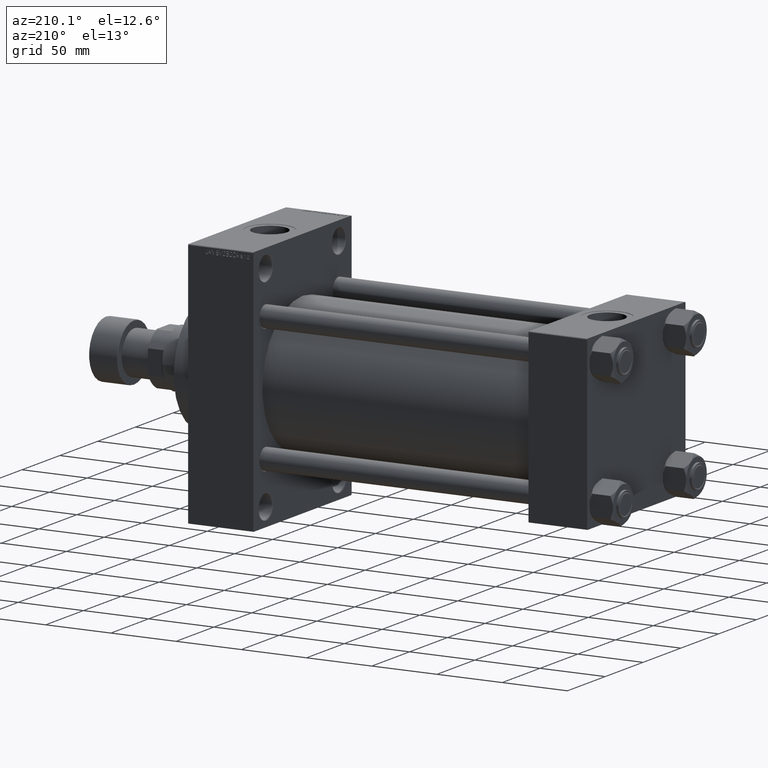
[diagram: clean part render]
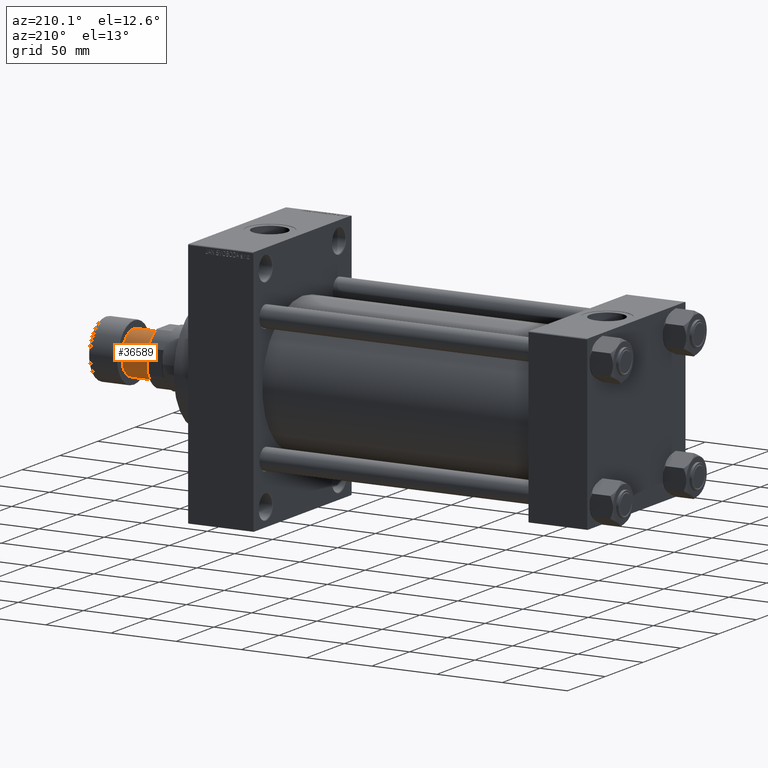
[diagram: same view with one face highlighted and labeled with its STEP entity id]
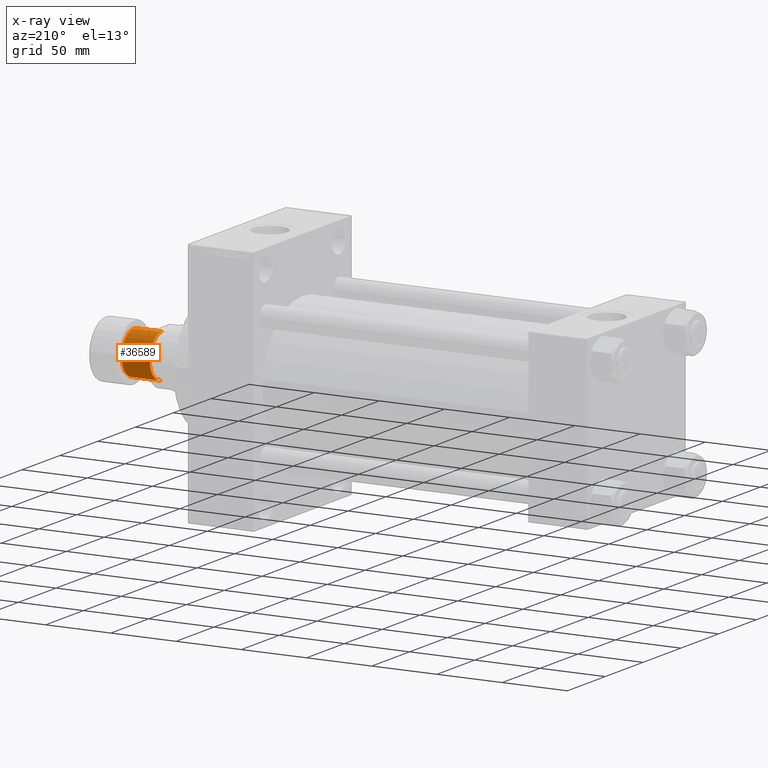
[diagram: x-ray of the same camera — body ghosted, the highlighted face saturated]
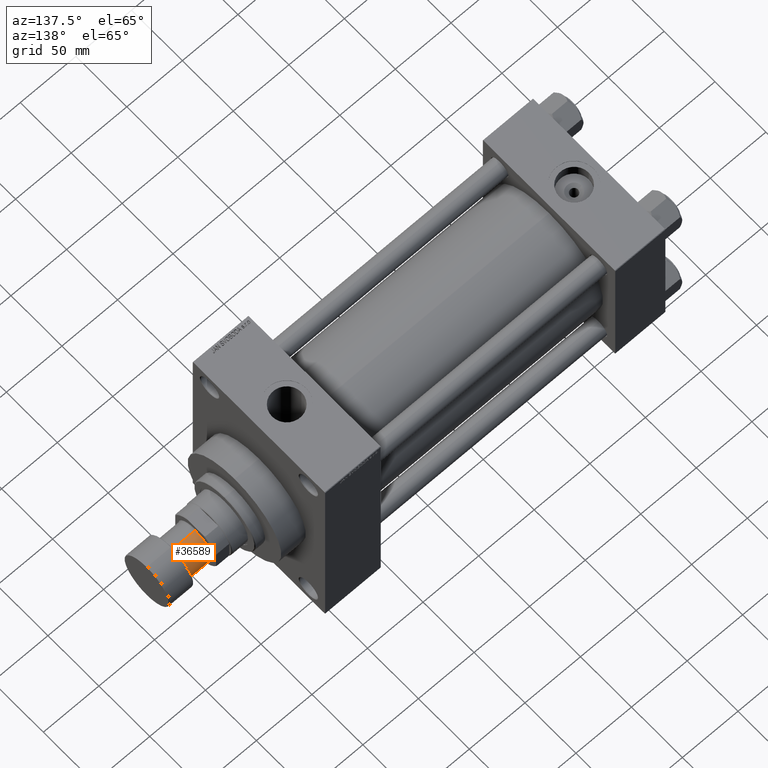
[diagram: same view with one face highlighted and labeled with its STEP entity id]
A machine part, auxiliary view. The second image highlights one B-rep face of the part: STEP entity #36589.
The next image is the same camera in x-ray: the body ghosted, the highlighted face saturated — about 0% of this face is hidden behind the body in this view.
A second angle (auxiliary view) of the same face is appended — the face is thin or edge-on in the first view.
In plain terms, the highlighted cylindrical surface (edge-blend (fillet) strip) has radius 16.5 mm, axis along (1, 0, 0).
Its self-contained STEP definition (entity closure, byte-faithful):
#1969 = VERTEX_POINT ( 'NONE', #21246 ) ;
#2648 = FACE_OUTER_BOUND ( 'NONE', #3519, .T. ) ;
#3519 = EDGE_LOOP ( 'NONE', ( #41879, #33096, #13464, #38704 ) ) ;
#3620 = CARTESIAN_POINT ( 'NONE',  ( 0.000000000000000000, 0.000000000000000000, -22.00000000000000000 ) ) ;
#10166 = CIRCLE ( 'NONE', #18705, 16.50000000000000000 ) ;
#11185 = LINE ( 'NONE', #43750, #27238 ) ;
#13138 = DIRECTION ( 'NONE',  ( 1.000000000000000000, 0.000000000000000000, 0.000000000000000000 ) ) ;
#13464 = ORIENTED_EDGE ( 'NONE', *, *, #28971, .T. ) ;
#16612 = EDGE_CURVE ( 'NONE', #38754, #1969, #10166, .T. ) ;
#18212 = EDGE_CURVE ( 'NONE', #38754, #31186, #33611, .T. ) ;
#18705 = AXIS2_PLACEMENT_3D ( 'NONE', #35797, #43806, #46968 ) ;
#21246 = CARTESIAN_POINT ( 'NONE',  ( 16.50000000000000000, 0.000000000000000000, -43.50000000000000000 ) ) ;
#26007 = DIRECTION ( 'NONE',  ( -0.000000000000000000, -0.000000000000000000, 1.000000000000000000 ) ) ;
#26069 = DIRECTION ( 'NONE',  ( -0.000000000000000000, -0.000000000000000000, 1.000000000000000000 ) ) ;
#26954 = VECTOR ( 'NONE', #26069, 1000.000000000000000 ) ;
#27238 = VECTOR ( 'NONE', #26007, 1000.000000000000000 ) ;
#28210 = CYLINDRICAL_SURFACE ( 'NONE', #33559, 16.50000000000000000 ) ;
#28971 = EDGE_CURVE ( 'NONE', #31186, #31173, #41925, .T. ) ;
#29847 = EDGE_CURVE ( 'NONE', #1969, #31173, #11185, .T. ) ;
#31173 = VERTEX_POINT ( 'NONE', #43152 ) ;
#31186 = VERTEX_POINT ( 'NONE', #39269 ) ;
#31895 = AXIS2_PLACEMENT_3D ( 'NONE', #3620, #32820, #48117 ) ;
#32820 = DIRECTION ( 'NONE',  ( 0.000000000000000000, 0.000000000000000000, -1.000000000000000000 ) ) ;
#33096 = ORIENTED_EDGE ( 'NONE', *, *, #18212, .T. ) ;
#33120 = CARTESIAN_POINT ( 'NONE',  ( -16.50000000000000000, 2.020667218593133100E-15, -43.50000000000000000 ) ) ;
#33559 = AXIS2_PLACEMENT_3D ( 'NONE', #36203, #42540, #13138 ) ;
#33611 = LINE ( 'NONE', #33120, #26954 ) ;
#35797 = CARTESIAN_POINT ( 'NONE',  ( 0.000000000000000000, 0.000000000000000000, -43.50000000000000000 ) ) ;
#36203 = CARTESIAN_POINT ( 'NONE',  ( 0.000000000000000000, 0.000000000000000000, -43.50000000000000000 ) ) ;
#36589 = ADVANCED_FACE ( 'NONE', ( #2648 ), #28210, .T. ) ;
#38704 = ORIENTED_EDGE ( 'NONE', *, *, #29847, .F. ) ;
#38754 = VERTEX_POINT ( 'NONE', #46214 ) ;
#39269 = CARTESIAN_POINT ( 'NONE',  ( -16.50000000000000000, 2.020667218593133100E-15, -22.00000000000000000 ) ) ;
#41879 = ORIENTED_EDGE ( 'NONE', *, *, #16612, .F. ) ;
#41925 = CIRCLE ( 'NONE', #31895, 16.50000000000000000 ) ;
#42540 = DIRECTION ( 'NONE',  ( -0.000000000000000000, -0.000000000000000000, 1.000000000000000000 ) ) ;
#43152 = CARTESIAN_POINT ( 'NONE',  ( 16.50000000000000000, 0.000000000000000000, -22.00000000000000000 ) ) ;
#43750 = CARTESIAN_POINT ( 'NONE',  ( 16.50000000000000000, 0.000000000000000000, -43.50000000000000000 ) ) ;
#43806 = DIRECTION ( 'NONE',  ( 0.000000000000000000, 0.000000000000000000, -1.000000000000000000 ) ) ;
#46214 = CARTESIAN_POINT ( 'NONE',  ( -16.50000000000000000, 2.020667218593133100E-15, -43.50000000000000000 ) ) ;
#46968 = DIRECTION ( 'NONE',  ( -1.000000000000000000, 0.000000000000000000, 0.000000000000000000 ) ) ;
#48117 = DIRECTION ( 'NONE',  ( -1.000000000000000000, 0.000000000000000000, 0.000000000000000000 ) ) ;